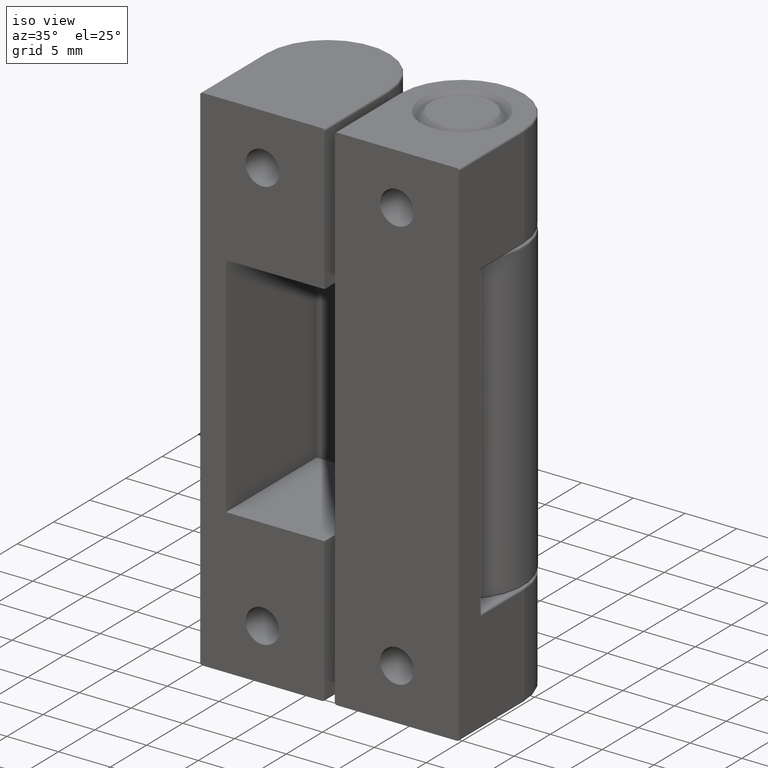
[diagram: clean part render]
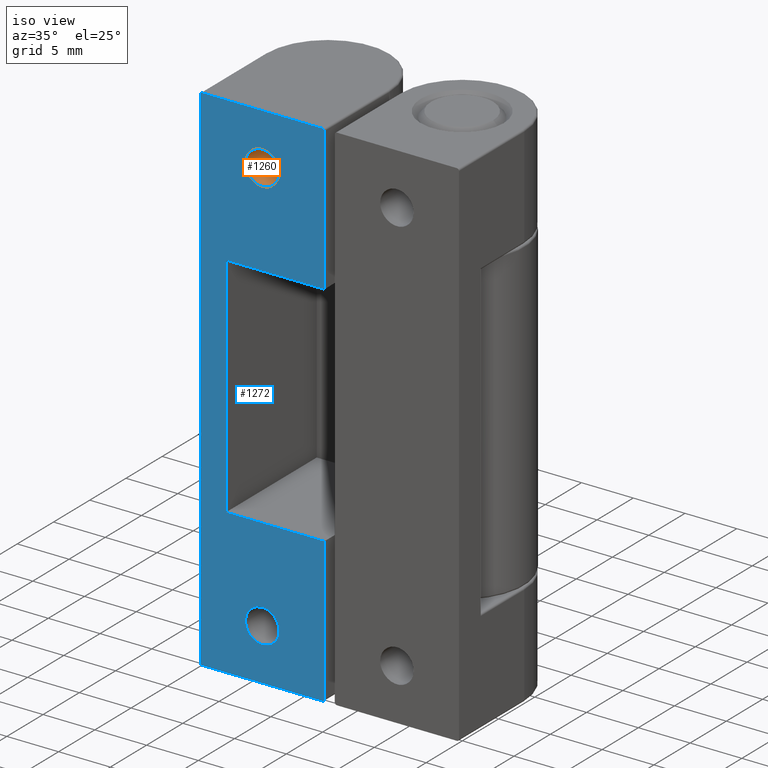
[diagram: same view with the hole feature highlighted: cylindrical wall and planar end face, labeled with their STEP entity ids]
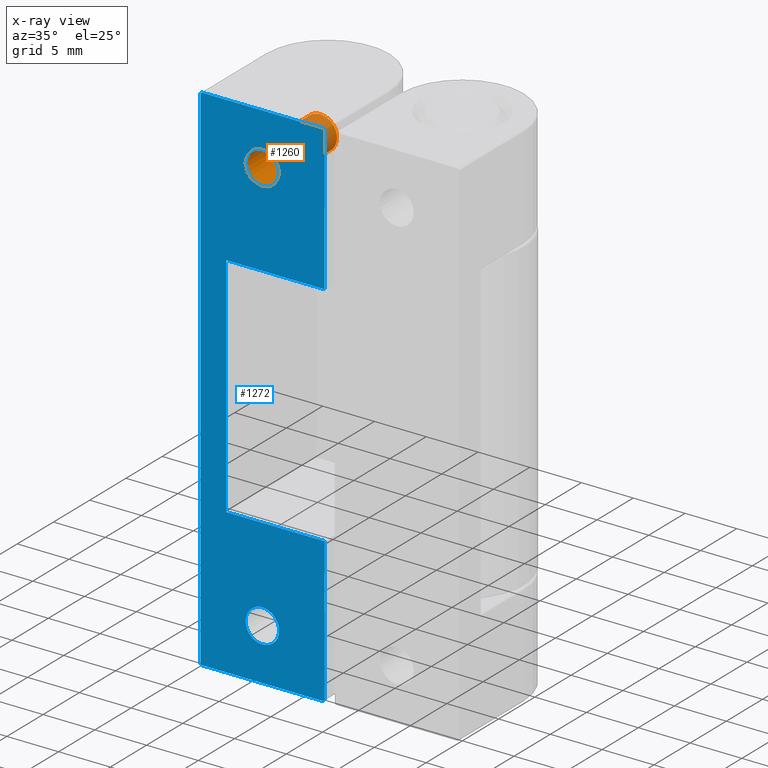
[diagram: x-ray of the same camera — body ghosted, the hole faces saturated]
A machine part, iso view. The highlighted faces form one hole feature of diameter 3.242 mm: the cylindrical wall (entity #1260, orange) and its adjacent planar end face (entity #1272, blue) — they share a circular edge in the B-rep.
The next image is the same camera in x-ray (body ghosted, the hole faces saturated) — the bore reads through the body.
Wall:
#55=FACE_BOUND('',#219,.T.);
#140=FACE_OUTER_BOUND('',#218,.T.);
#218=EDGE_LOOP('',(#994));
#219=EDGE_LOOP('',(#995));
#517=CIRCLE('',#1372,1.621);
#518=CIRCLE('',#1374,1.621);
#622=VERTEX_POINT('',#2068);
#623=VERTEX_POINT('',#2071);
#768=EDGE_CURVE('',#622,#622,#517,.T.);
#769=EDGE_CURVE('',#623,#623,#518,.T.);
#994=ORIENTED_EDGE('',*,*,#769,.F.);
#995=ORIENTED_EDGE('',*,*,#768,.F.);
#1213=CYLINDRICAL_SURFACE('',#1373,1.621);
#1260=ADVANCED_FACE('',(#140,#55),#1213,.F.);
#1372=AXIS2_PLACEMENT_3D('',#2069,#1649,#1650);
#1373=AXIS2_PLACEMENT_3D('',#2070,#1651,#1652);
#1374=AXIS2_PLACEMENT_3D('',#2072,#1653,#1654);
#1649=DIRECTION('center_axis',(3.06161699786838E-16,-1.,0.));
#1650=DIRECTION('ref_axis',(1.,3.06161699786838E-16,0.));
#1651=DIRECTION('center_axis',(3.06161699786838E-16,-1.,0.));
#1652=DIRECTION('ref_axis',(1.,3.06161699786838E-16,0.));
#1653=DIRECTION('center_axis',(-3.06161699786838E-16,1.,0.));
#1654=DIRECTION('ref_axis',(1.,3.06161699786838E-16,0.));
#2068=CARTESIAN_POINT('',(1.621,8.,-5.));
#2069=CARTESIAN_POINT('Origin',(-2.44929359829471E-15,8.,-5.));
#2070=CARTESIAN_POINT('Origin',(-1.22464679914735E-15,4.,-5.));
#2071=CARTESIAN_POINT('',(1.621,1.59847023458708E-15,-5.));
#2072=CARTESIAN_POINT('Origin',(0.,1.11022302462516E-15,-5.));
End face:
#59=FACE_BOUND('',#235,.T.);
#60=FACE_BOUND('',#236,.T.);
#99=PLANE('',#1388);
#152=FACE_OUTER_BOUND('',#234,.T.);
#234=EDGE_LOOP('',(#1054,#1055,#1056,#1057,#1058,#1059,#1060,#1061,#1062,
#1063,#1064,#1065));
#235=EDGE_LOOP('',(#1066));
#236=EDGE_LOOP('',(#1067));
#338=LINE('',#2044,#437);
#343=LINE('',#2064,#442);
#347=LINE('',#2082,#446);
#350=LINE('',#2088,#449);
#352=LINE('',#2092,#451);
#355=LINE('',#2096,#454);
#356=LINE('',#2100,#455);
#357=LINE('',#2102,#456);
#437=VECTOR('',#1621,49.6);
#442=VECTOR('',#1644,13.8);
#446=VECTOR('',#1666,9.49999999999999);
#449=VECTOR('',#1673,22.);
#451=VECTOR('',#1677,9.49999999999999);
#454=VECTOR('',#1682,13.8);
#455=VECTOR('',#1689,11.6);
#456=VECTOR('',#1692,11.6);
#503=CIRCLE('',#1349,0.2);
#508=CIRCLE('',#1356,0.2);
#512=CIRCLE('',#1363,0.2);
#516=CIRCLE('',#1369,0.2);
#518=CIRCLE('',#1374,1.621);
#520=CIRCLE('',#1378,1.621);
#603=VERTEX_POINT('',#2011);
#604=VERTEX_POINT('',#2012);
#609=VERTEX_POINT('',#2026);
#610=VERTEX_POINT('',#2027);
#615=VERTEX_POINT('',#2043);
#616=VERTEX_POINT('',#2047);
#617=VERTEX_POINT('',#2048);
#620=VERTEX_POINT('',#2059);
#621=VERTEX_POINT('',#2063);
#623=VERTEX_POINT('',#2071);
#625=VERTEX_POINT('',#2077);
#626=VERTEX_POINT('',#2081);
#627=VERTEX_POINT('',#2087);
#628=VERTEX_POINT('',#2091);
#739=EDGE_CURVE('',#603,#604,#503,.T.);
#746=EDGE_CURVE('',#609,#610,#508,.T.);
#755=EDGE_CURVE('',#615,#604,#338,.T.);
#757=EDGE_CURVE('',#616,#617,#512,.T.);
#763=EDGE_CURVE('',#615,#620,#516,.T.);
#765=EDGE_CURVE('',#617,#621,#343,.T.);
#769=EDGE_CURVE('',#623,#623,#518,.T.);
#771=EDGE_CURVE('',#625,#625,#520,.T.);
#773=EDGE_CURVE('',#626,#621,#347,.T.);
#776=EDGE_CURVE('',#627,#626,#350,.T.);
#778=EDGE_CURVE('',#628,#627,#352,.T.);
#781=EDGE_CURVE('',#628,#609,#355,.T.);
#782=EDGE_CURVE('',#610,#603,#356,.T.);
#783=EDGE_CURVE('',#620,#616,#357,.T.);
#1054=ORIENTED_EDGE('',*,*,#746,.F.);
#1055=ORIENTED_EDGE('',*,*,#781,.F.);
#1056=ORIENTED_EDGE('',*,*,#778,.T.);
#1057=ORIENTED_EDGE('',*,*,#776,.T.);
#1058=ORIENTED_EDGE('',*,*,#773,.T.);
#1059=ORIENTED_EDGE('',*,*,#765,.F.);
#1060=ORIENTED_EDGE('',*,*,#757,.F.);
#1061=ORIENTED_EDGE('',*,*,#783,.F.);
#1062=ORIENTED_EDGE('',*,*,#763,.F.);
#1063=ORIENTED_EDGE('',*,*,#755,.T.);
#1064=ORIENTED_EDGE('',*,*,#739,.F.);
#1065=ORIENTED_EDGE('',*,*,#782,.F.);
#1066=ORIENTED_EDGE('',*,*,#769,.T.);
#1067=ORIENTED_EDGE('',*,*,#771,.T.);
#1272=ADVANCED_FACE('',(#152,#59,#60),#99,.T.);
#1349=AXIS2_PLACEMENT_3D('',#2013,#1588,#1589);
#1356=AXIS2_PLACEMENT_3D('',#2028,#1604,#1605);
#1363=AXIS2_PLACEMENT_3D('',#2049,#1625,#1626);
#1369=AXIS2_PLACEMENT_3D('',#2060,#1639,#1640);
#1374=AXIS2_PLACEMENT_3D('',#2072,#1653,#1654);
#1378=AXIS2_PLACEMENT_3D('',#2078,#1661,#1662);
#1388=AXIS2_PLACEMENT_3D('',#2103,#1693,#1694);
#1588=DIRECTION('center_axis',(-3.06161699786838E-16,1.,0.));
#1589=DIRECTION('ref_axis',(-0.707106781186555,0.,-0.70710678118654));
#1604=DIRECTION('center_axis',(-3.06161699786838E-16,1.,0.));
#1605=DIRECTION('ref_axis',(0.707106781186555,0.,-0.70710678118654));
#1621=DIRECTION('',(0.,0.,-1.));
#1625=DIRECTION('center_axis',(-3.06161699786838E-16,1.,0.));
#1626=DIRECTION('ref_axis',(0.707106781186548,0.,0.707106781186547));
#1639=DIRECTION('center_axis',(-3.06161699786838E-16,1.,0.));
#1640=DIRECTION('ref_axis',(-0.707106781186548,0.,0.707106781186547));
#1644=DIRECTION('',(0.,0.,-1.));
#1653=DIRECTION('center_axis',(-3.06161699786838E-16,1.,0.));
#1654=DIRECTION('ref_axis',(1.,3.06161699786838E-16,0.));
#1661=DIRECTION('center_axis',(-3.06161699786838E-16,1.,0.));
#1662=DIRECTION('ref_axis',(1.,3.06161699786838E-16,0.));
#1666=DIRECTION('',(1.,3.06161699786838E-16,0.));
#1673=DIRECTION('',(0.,0.,1.));
#1677=DIRECTION('',(-1.,-3.06161699786838E-16,0.));
#1682=DIRECTION('',(0.,0.,-1.));
#1689=DIRECTION('',(-1.,-3.06161699786838E-16,0.));
#1692=DIRECTION('',(1.,3.06161699786838E-16,0.));
#1693=DIRECTION('center_axis',(3.06161699786838E-16,-1.,0.));
#1694=DIRECTION('ref_axis',(-1.,-3.06161699786838E-16,0.));
#2011=CARTESIAN_POINT('',(-5.8,-6.73555739531043E-16,-50.));
#2012=CARTESIAN_POINT('',(-6.,-7.34788079488411E-16,-49.8));
#2013=CARTESIAN_POINT('Origin',(-5.8,-4.44089209850063E-15,-49.8));
#2026=CARTESIAN_POINT('',(6.,2.93915231795365E-15,-49.8));
#2027=CARTESIAN_POINT('',(5.79999999999999,2.87791997799628E-15,-50.));
#2028=CARTESIAN_POINT('Origin',(5.8,3.33066907387547E-15,-49.8));
#2043=CARTESIAN_POINT('',(-6.,-7.34788079488411E-16,-0.2));
#2044=CARTESIAN_POINT('',(-6.,-7.34788079488411E-16,0.));
#2047=CARTESIAN_POINT('',(5.79999999999999,2.87791997799628E-15,0.));
#2048=CARTESIAN_POINT('',(6.,2.93915231795365E-15,-0.2));
#2049=CARTESIAN_POINT('Origin',(5.8,3.33066907387547E-15,-0.2));
#2059=CARTESIAN_POINT('',(-5.8,-6.73555739531043E-16,0.));
#2060=CARTESIAN_POINT('Origin',(-5.8,-4.44089209850063E-15,-0.2));
#2063=CARTESIAN_POINT('',(6.,2.93915231795365E-15,-14.));
#2064=CARTESIAN_POINT('',(6.,2.93915231795365E-15,0.));
#2071=CARTESIAN_POINT('',(1.621,1.59847023458708E-15,-5.));
#2072=CARTESIAN_POINT('Origin',(0.,1.11022302462516E-15,-5.));
#2077=CARTESIAN_POINT('',(1.621,1.59847023458708E-15,-45.));
#2078=CARTESIAN_POINT('Origin',(0.,1.11022302462516E-15,-45.));
#2081=CARTESIAN_POINT('',(-3.5,3.06161699786846E-17,-14.));
#2082=CARTESIAN_POINT('',(1.25,1.48488424396616E-15,-14.));
#2087=CARTESIAN_POINT('',(-3.5,3.06161699786846E-17,-36.));
#2088=CARTESIAN_POINT('',(-3.5,3.06161699786844E-17,-18.));
#2091=CARTESIAN_POINT('',(6.,2.93915231795365E-15,-36.));
#2092=CARTESIAN_POINT('',(8.75,3.78109699236745E-15,-36.));
#2096=CARTESIAN_POINT('',(6.,2.93915231795365E-15,0.));
#2100=CARTESIAN_POINT('',(-6.,-7.34788079488411E-16,-50.));
#2102=CARTESIAN_POINT('',(-6.,-7.34788079488411E-16,0.));
#2103=CARTESIAN_POINT('Origin',(6.,2.93915231795365E-15,0.));